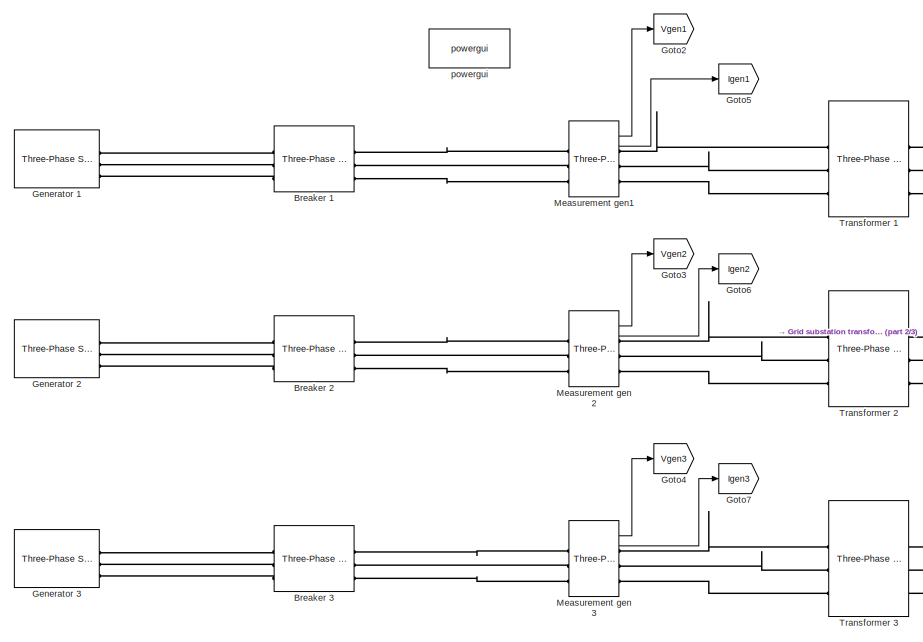
[diagram: root canvas - part 1/3, top left region]
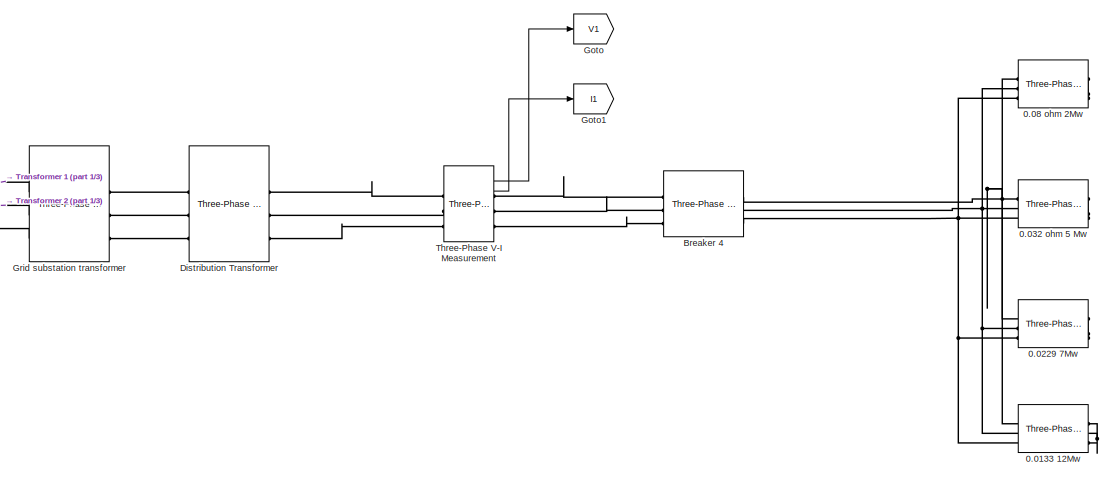
[diagram: root canvas - part 2/3, middle right region]
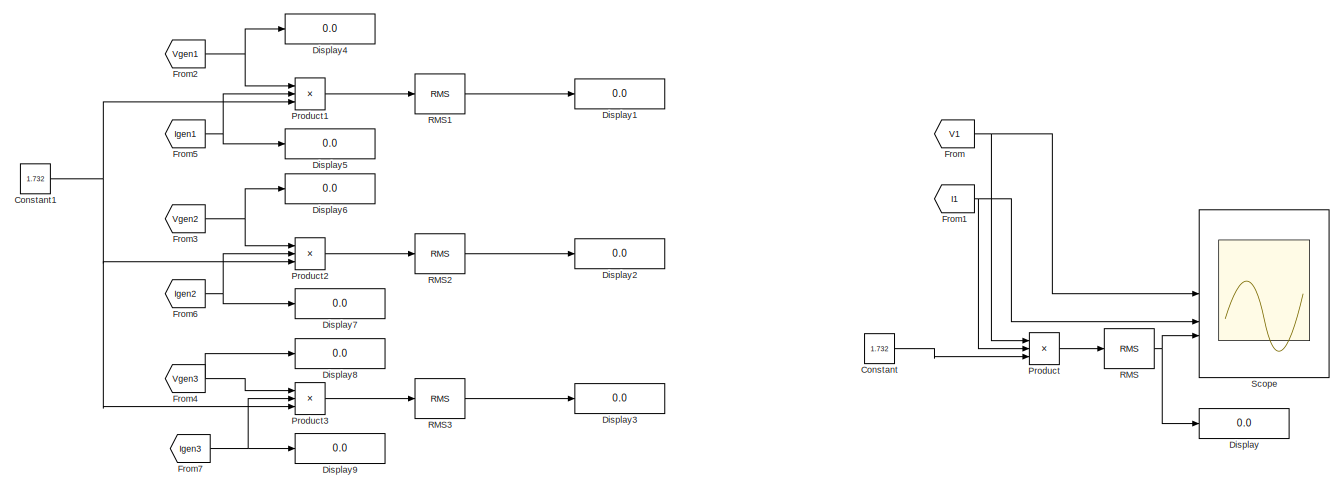
[diagram: root canvas - part 3/3, bottom center region]
MODEL slx_1e88448a1385
KIND model
CONFIG AbsTol = auto
CONFIG EnableMultiTasking = off
CONFIG FixedStep = auto
CONFIG MaxStep = auto
CONFIG MinStep = auto
CONFIG RelTol = 1e-3
CONFIG SampleTimeConstraint = Unconstrained
CONFIG SolverName = VariableStepAuto
CONFIG StartTime = 0.0
CONFIG StopTime = 1
BLOCK [Reference] 0.0133 12Mw  REF=spsThreePhaseParallelRLCBranchLib/Three-Phase
Parallel RLC Branch
  AttributesFormatString = \n
  LibrarySourceBlock = sps_lib/Passives/Three-Phase\nParallel RLC Branch
  SourceBlock = spsThreePhaseParallelRLCBranchLib/Three-Phase\nParallel RLC Branch
  SourceType = Three-Phase Parallel RLC Branch
BLOCK [Reference] 0.0229 7Mw  REF=spsThreePhaseParallelRLCBranchLib/Three-Phase
Parallel RLC Branch
  AttributesFormatString = \n
  LibrarySourceBlock = sps_lib/Passives/Three-Phase\nParallel RLC Branch
  SourceBlock = spsThreePhaseParallelRLCBranchLib/Three-Phase\nParallel RLC Branch
  SourceType = Three-Phase Parallel RLC Branch
BLOCK [Reference] 0.032 ohm 5 Mw  REF=spsThreePhaseParallelRLCBranchLib/Three-Phase
Parallel RLC Branch
  AttributesFormatString = \n
  LibrarySourceBlock = sps_lib/Passives/Three-Phase\nParallel RLC Branch
  SourceBlock = spsThreePhaseParallelRLCBranchLib/Three-Phase\nParallel RLC Branch
  SourceType = Three-Phase Parallel RLC Branch
BLOCK [Reference] 0.08 ohm 2Mw  REF=spsThreePhaseParallelRLCBranchLib/Three-Phase
Parallel RLC Branch
  AttributesFormatString = \n
  LibrarySourceBlock = sps_lib/Passives/Three-Phase\nParallel RLC Branch
  SourceBlock = spsThreePhaseParallelRLCBranchLib/Three-Phase\nParallel RLC Branch
  SourceType = Three-Phase Parallel RLC Branch
BLOCK [Reference] Breaker 1  REF=spsThreePhaseBreakerLib/Three-Phase Breaker
  LibrarySourceBlock = sps_lib/Power Grid Elements/Three-Phase Breaker
  SourceBlock = spsThreePhaseBreakerLib/Three-Phase Breaker
  SourceType = Three-Phase Breaker
BLOCK [Reference] Breaker 2  REF=spsThreePhaseBreakerLib/Three-Phase Breaker
  LibrarySourceBlock = sps_lib/Power Grid Elements/Three-Phase Breaker
  SourceBlock = spsThreePhaseBreakerLib/Three-Phase Breaker
  SourceType = Three-Phase Breaker
BLOCK [Reference] Breaker 3  REF=spsThreePhaseBreakerLib/Three-Phase Breaker
  LibrarySourceBlock = sps_lib/Power Grid Elements/Three-Phase Breaker
  SourceBlock = spsThreePhaseBreakerLib/Three-Phase Breaker
  SourceType = Three-Phase Breaker
BLOCK [Reference] Breaker 4  REF=spsThreePhaseBreakerLib/Three-Phase Breaker
  LibrarySourceBlock = sps_lib/Power Grid Elements/Three-Phase Breaker
  SourceBlock = spsThreePhaseBreakerLib/Three-Phase Breaker
  SourceType = Three-Phase Breaker
BLOCK [Constant] Constant
  Value = 1.732
BLOCK [Constant] Constant1
  Value = 1.732
BLOCK [Display] Display
  Decimation = 1
  Format = bank
BLOCK [Display] Display1
  Decimation = 1
  Format = bank
BLOCK [Display] Display2
  Decimation = 1
  Format = bank
BLOCK [Display] Display3
  Decimation = 1
  Format = bank
BLOCK [Display] Display4
  Decimation = 1
  Format = bank
BLOCK [Display] Display5
  Decimation = 1
  Format = bank
BLOCK [Display] Display6
  Decimation = 1
  Format = bank
BLOCK [Display] Display7
  Decimation = 1
  Format = bank
BLOCK [Display] Display8
  Decimation = 1
  Format = bank
BLOCK [Display] Display9
  Decimation = 1
  Format = bank
BLOCK [Reference] Distribution Transformer  REF=spsThreePhaseTransformerTwoWindingsLib/Three-Phase
Transformer
(Two Windings)
  LibrarySourceBlock = sps_lib/Power Grid Elements/Three-Phase\nTransformer\n(Two Windings)
  SourceBlock = spsThreePhaseTransformerTwoWindingsLib/Three-Phase\nTransformer\n(Two Windings)
  SourceType = Three-Phase Transformer (Two Windings)
BLOCK [From] From
  GotoTag = V1
BLOCK [From] From1
  GotoTag = I1
BLOCK [From] From2
  GotoTag = Vgen1
BLOCK [From] From3
  GotoTag = Vgen2
BLOCK [From] From4
  GotoTag = Vgen3
BLOCK [From] From5
  GotoTag = Igen1
BLOCK [From] From6
  GotoTag = Igen2
BLOCK [From] From7
  GotoTag = Igen3
BLOCK [Reference] Generator 1  REF=spsThreePhaseSourceLib/Three-Phase Source
  LibrarySourceBlock = sps_lib/Sources/Three-Phase Source
  SourceBlock = spsThreePhaseSourceLib/Three-Phase Source
  SourceType = Three-Phase Source
BLOCK [Reference] Generator 2  REF=spsThreePhaseSourceLib/Three-Phase Source
  LibrarySourceBlock = sps_lib/Sources/Three-Phase Source
  SourceBlock = spsThreePhaseSourceLib/Three-Phase Source
  SourceType = Three-Phase Source
BLOCK [Reference] Generator 3  REF=spsThreePhaseSourceLib/Three-Phase Source
  LibrarySourceBlock = sps_lib/Sources/Three-Phase Source
  SourceBlock = spsThreePhaseSourceLib/Three-Phase Source
  SourceType = Three-Phase Source
BLOCK [Goto] Goto
  GotoTag = V1
BLOCK [Goto] Goto1
  GotoTag = I1
BLOCK [Goto] Goto2
  GotoTag = Vgen1
BLOCK [Goto] Goto3
  GotoTag = Vgen2
BLOCK [Goto] Goto4
  GotoTag = Vgen3
BLOCK [Goto] Goto5
  GotoTag = Igen1
BLOCK [Goto] Goto6
  GotoTag = Igen2
BLOCK [Goto] Goto7
  GotoTag = Igen3
BLOCK [Reference] Grid substation transformer  REF=spsThreePhaseTransformerTwoWindingsLib/Three-Phase
Transformer
(Two Windings)
  LibrarySourceBlock = sps_lib/Power Grid Elements/Three-Phase\nTransformer\n(Two Windings)
  SourceBlock = spsThreePhaseTransformerTwoWindingsLib/Three-Phase\nTransformer\n(Two Windings)
  SourceType = Three-Phase Transformer (Two Windings)
BLOCK [Reference] Measurement gen 2  REF=spsThreePhaseVIMeasurementLib/Three-Phase
V-I Measurement
  LibrarySourceBlock = sps_lib/Sensors and Measurements/Three-Phase\nV-I Measurement
  SourceBlock = spsThreePhaseVIMeasurementLib/Three-Phase\nV-I Measurement
  SourceType = Three-Phase VI Measurement
BLOCK [Reference] Measurement gen 3  REF=spsThreePhaseVIMeasurementLib/Three-Phase
V-I Measurement
  LibrarySourceBlock = sps_lib/Sensors and Measurements/Three-Phase\nV-I Measurement
  SourceBlock = spsThreePhaseVIMeasurementLib/Three-Phase\nV-I Measurement
  SourceType = Three-Phase VI Measurement
BLOCK [Reference] Measurement gen1  REF=spsThreePhaseVIMeasurementLib/Three-Phase
V-I Measurement
  LibrarySourceBlock = sps_lib/Sensors and Measurements/Three-Phase\nV-I Measurement
  SourceBlock = spsThreePhaseVIMeasurementLib/Three-Phase\nV-I Measurement
  SourceType = Three-Phase VI Measurement
BLOCK [Product] Product
  Inputs = 3
BLOCK [Product] Product1
  Inputs = 3
BLOCK [Product] Product2
  Inputs = 3
BLOCK [Product] Product3
  Inputs = 3
BLOCK [Reference] RMS  REF=spsRMSLib/RMS
  LibrarySourceBlock = sps_lib/Sensors and Measurements/RMS
  SourceBlock = spsRMSLib/RMS
  SourceType = RMS
BLOCK [Reference] RMS1  REF=spsRMSLib/RMS
  LibrarySourceBlock = sps_lib/Sensors and Measurements/RMS
  SourceBlock = spsRMSLib/RMS
  SourceType = RMS
BLOCK [Reference] RMS2  REF=spsRMSLib/RMS
  LibrarySourceBlock = sps_lib/Sensors and Measurements/RMS
  SourceBlock = spsRMSLib/RMS
  SourceType = RMS
BLOCK [Reference] RMS3  REF=spsRMSLib/RMS
  LibrarySourceBlock = sps_lib/Sensors and Measurements/RMS
  SourceBlock = spsRMSLib/RMS
  SourceType = RMS
BLOCK [Scope] Scope
  Floating = off
  NumInputPorts = 3
  ScopeSpecificationString = Simulink.scopes.TimeScopeBlockCfg('CurrentConfiguration', extmgr.ConfigurationSet(extmgr.Configuration('Core','General UI',true),extmgr.Configuration('Core','Source UI',true),extmgr.Configuration('Sources','WiredSimulink',true),extmgr.Configuration('Visuals','Time Domain',true,'SerializedDisplays',{struct('MinYLimReal','-296.22199','MaxYLimReal','313.7642','YLabelReal','','MinYLimMag',' 0.00000','...<+2731ch>
BLOCK [Reference] Three-Phase V-I Measurement  REF=spsThreePhaseVIMeasurementLib/Three-Phase
V-I Measurement
  LibrarySourceBlock = sps_lib/Sensors and Measurements/Three-Phase\nV-I Measurement
  SourceBlock = spsThreePhaseVIMeasurementLib/Three-Phase\nV-I Measurement
  SourceType = Three-Phase VI Measurement
BLOCK [Reference] Transformer 1  REF=spsThreePhaseTransformerTwoWindingsLib/Three-Phase
Transformer
(Two Windings)
  LibrarySourceBlock = sps_lib/Power Grid Elements/Three-Phase\nTransformer\n(Two Windings)
  SourceBlock = spsThreePhaseTransformerTwoWindingsLib/Three-Phase\nTransformer\n(Two Windings)
  SourceType = Three-Phase Transformer (Two Windings)
BLOCK [Reference] Transformer 2  REF=spsThreePhaseTransformerTwoWindingsLib/Three-Phase
Transformer
(Two Windings)
  LibrarySourceBlock = sps_lib/Power Grid Elements/Three-Phase\nTransformer\n(Two Windings)
  SourceBlock = spsThreePhaseTransformerTwoWindingsLib/Three-Phase\nTransformer\n(Two Windings)
  SourceType = Three-Phase Transformer (Two Windings)
BLOCK [Reference] Transformer 3  REF=spsThreePhaseTransformerTwoWindingsLib/Three-Phase
Transformer
(Two Windings)
  LibrarySourceBlock = sps_lib/Power Grid Elements/Three-Phase\nTransformer\n(Two Windings)
  SourceBlock = spsThreePhaseTransformerTwoWindingsLib/Three-Phase\nTransformer\n(Two Windings)
  SourceType = Three-Phase Transformer (Two Windings)
BLOCK [Reference] powergui  REF=sps_lib/powergui
  LibrarySourceBlock = sps_lib/powergui
  Priority = 1
  SourceBlock = sps_lib/powergui
  SourceType = PSB option menu block
NET Constant1:1 -> Product1:3, Product2:3, Product3:3
LINE Constant:1 -> Product:3
NET From1:1 -> Product:2, Scope:2
NET From2:1 -> Display4:1, Product1:1
NET From3:1 -> Display6:1, Product2:1
NET From4:1 -> Display8:1, Product3:1
NET From5:1 -> Display5:1, Product1:2
NET From6:1 -> Display7:1, Product2:2
NET From7:1 -> Display9:1, Product3:2
NET From:1 -> Product:1, Scope:1
LINE Measurement gen 2:1 -> Goto3:1
LINE Measurement gen 2:2 -> Goto6:1
LINE Measurement gen 3:1 -> Goto4:1
LINE Measurement gen 3:2 -> Goto7:1
LINE Measurement gen1:1 -> Goto2:1
LINE Measurement gen1:2 -> Goto5:1
LINE Product1:1 -> RMS1:1
LINE Product2:1 -> RMS2:1
LINE Product3:1 -> RMS3:1
LINE Product:1 -> RMS:1
LINE RMS1:1 -> Display1:1
LINE RMS2:1 -> Display2:1
LINE RMS3:1 -> Display3:1
NET RMS:1 -> Display:1, Scope:3
LINE Three-Phase V-I Measurement:1 -> Goto:1
LINE Three-Phase V-I Measurement:2 -> Goto1:1
PNET net1: 0.0133 12Mw:LConn1 -- 0.0229 7Mw:LConn1 -- 0.032 ohm 5 Mw:LConn1 -- 0.08 ohm 2Mw:LConn1 -- Breaker 4:RConn1
PNET net2: 0.0133 12Mw:LConn2 -- 0.0229 7Mw:LConn2 -- 0.032 ohm 5 Mw:LConn2 -- 0.08 ohm 2Mw:LConn2 -- Breaker 4:RConn2
PNET net3: 0.0133 12Mw:LConn3 -- 0.0229 7Mw:LConn3 -- 0.032 ohm 5 Mw:LConn3 -- 0.08 ohm 2Mw:LConn3 -- Breaker 4:RConn3
PNET net4: 0.0133 12Mw:RConn1 -- 0.0133 12Mw:RConn2 -- 0.0133 12Mw:RConn3
PNET net5: 0.0229 7Mw:RConn1 -- 0.0229 7Mw:RConn2 -- 0.0229 7Mw:RConn3
PNET net6: 0.032 ohm 5 Mw:RConn1 -- 0.032 ohm 5 Mw:RConn2 -- 0.032 ohm 5 Mw:RConn3
PNET net7: 0.08 ohm 2Mw:RConn1 -- 0.08 ohm 2Mw:RConn2 -- 0.08 ohm 2Mw:RConn3
PLINE Breaker 1:LConn1 -- Generator 1:RConn1
PLINE Breaker 1:LConn2 -- Generator 1:RConn2
PLINE Breaker 1:LConn3 -- Generator 1:RConn3
PLINE Breaker 1:RConn1 -- Measurement gen1:LConn1
PLINE Breaker 1:RConn2 -- Measurement gen1:LConn2
PLINE Breaker 1:RConn3 -- Measurement gen1:LConn3
PLINE Breaker 2:LConn1 -- Generator 2:RConn1
PLINE Breaker 2:LConn2 -- Generator 2:RConn2
PLINE Breaker 2:LConn3 -- Generator 2:RConn3
PLINE Breaker 2:RConn1 -- Measurement gen 2:LConn1
PLINE Breaker 2:RConn2 -- Measurement gen 2:LConn2
PLINE Breaker 2:RConn3 -- Measurement gen 2:LConn3
PLINE Breaker 3:LConn1 -- Generator 3:RConn1
PLINE Breaker 3:LConn2 -- Generator 3:RConn2
PLINE Breaker 3:LConn3 -- Generator 3:RConn3
PLINE Breaker 3:RConn1 -- Measurement gen 3:LConn1
PLINE Breaker 3:RConn2 -- Measurement gen 3:LConn2
PLINE Breaker 3:RConn3 -- Measurement gen 3:LConn3
PLINE Breaker 4:LConn1 -- Three-Phase V-I Measurement:RConn1
PLINE Breaker 4:LConn2 -- Three-Phase V-I Measurement:RConn2
PLINE Breaker 4:LConn3 -- Three-Phase V-I Measurement:RConn3
PLINE Distribution Transformer:LConn1 -- Grid substation transformer:RConn1
PLINE Distribution Transformer:LConn2 -- Grid substation transformer:RConn2
PLINE Distribution Transformer:LConn3 -- Grid substation transformer:RConn3
PLINE Distribution Transformer:RConn1 -- Three-Phase V-I Measurement:LConn1
PLINE Distribution Transformer:RConn2 -- Three-Phase V-I Measurement:LConn2
PLINE Distribution Transformer:RConn3 -- Three-Phase V-I Measurement:LConn3
PNET net8: Grid substation transformer:LConn1 -- Transformer 1:RConn1 -- Transformer 2:RConn1 -- Transformer 3:RConn1
PNET net9: Grid substation transformer:LConn2 -- Transformer 1:RConn2 -- Transformer 2:RConn2 -- Transformer 3:RConn2
PNET net10: Grid substation transformer:LConn3 -- Transformer 1:RConn3 -- Transformer 2:RConn3 -- Transformer 3:RConn3
PLINE Measurement gen 2:RConn1 -- Transformer 2:LConn1
PLINE Measurement gen 2:RConn2 -- Transformer 2:LConn2
PLINE Measurement gen 2:RConn3 -- Transformer 2:LConn3
PLINE Measurement gen 3:RConn1 -- Transformer 3:LConn1
PLINE Measurement gen 3:RConn2 -- Transformer 3:LConn2
PLINE Measurement gen 3:RConn3 -- Transformer 3:LConn3
PLINE Measurement gen1:RConn1 -- Transformer 1:LConn1
PLINE Measurement gen1:RConn2 -- Transformer 1:LConn2
PLINE Measurement gen1:RConn3 -- Transformer 1:LConn3
note: NET lines group one-source signal fan-out (src -> all destinations, sorted); 1:1 wires keep LINE; PNET lines group multi-terminal physical nets as a canonical sorted terminal list (undirected conserving connections); 2-terminal nets keep the pairwise PLINE form
